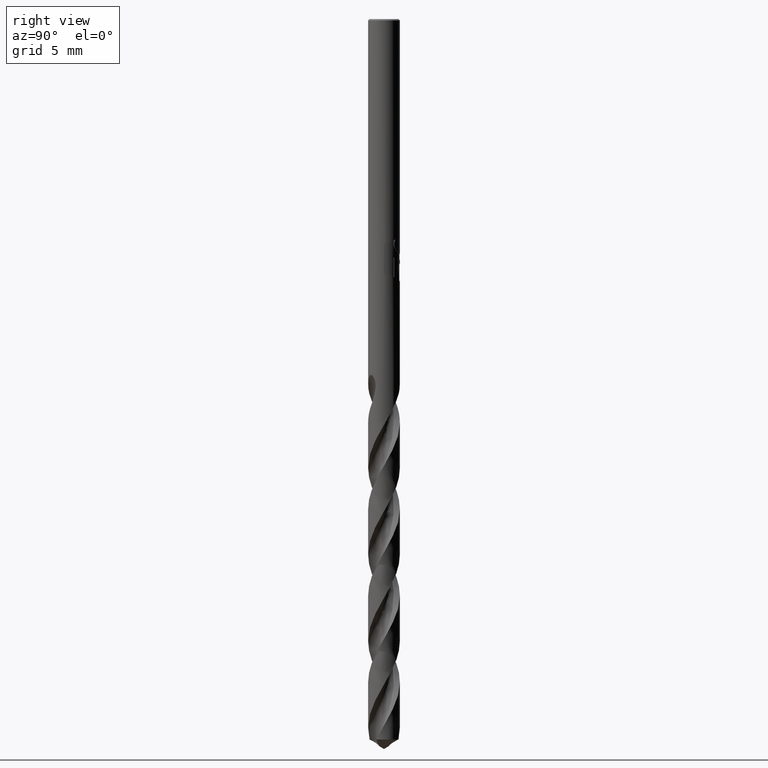
[diagram: clean part render]
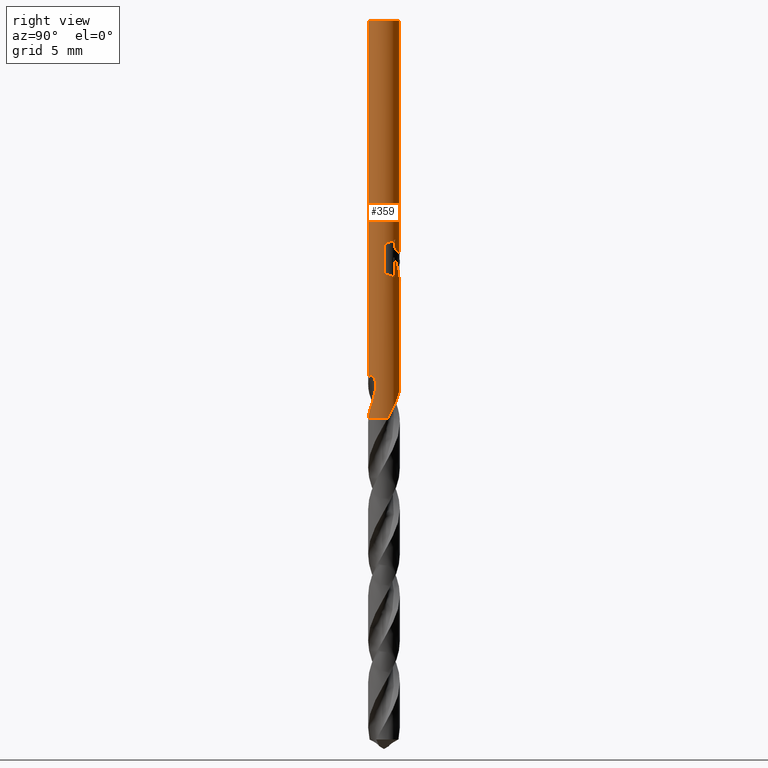
[diagram: same view with one face highlighted and labeled with its STEP entity id]
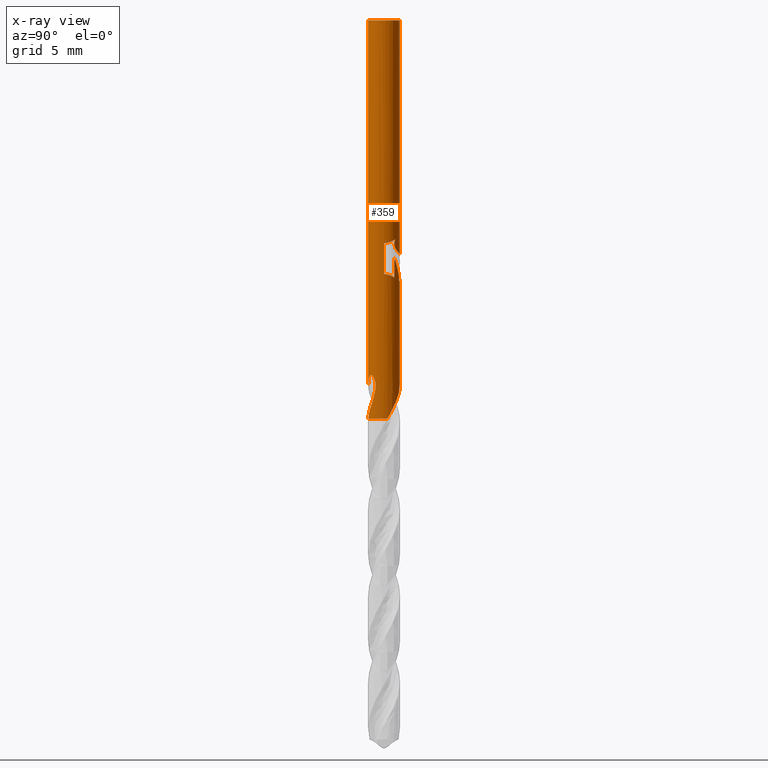
[diagram: x-ray of the same camera — body ghosted, the highlighted face saturated]
A machine part, right view. The second image highlights one B-rep face of the part: STEP entity #359.
The next image is the same camera in x-ray: the body ghosted, the highlighted face saturated — about 0% of this face is hidden behind the body in this view.
In plain terms, the highlighted cylindrical surface (edge-blend (fillet) strip) has radius 1.15 mm, axis along (-0, -0, 1).
Its self-contained STEP definition (entity closure, byte-faithful):
#315=EDGE_CURVE('',#685,#635,#874,.T.);
#321=EDGE_CURVE('',#489,#705,#880,.T.);
#325=EDGE_CURVE('',#589,#673,#884,.T.);
#359=ADVANCED_FACE('',(#919),#920,.T.);
#371=EDGE_CURVE('',#635,#581,#932,.T.);
#379=VERTEX_POINT('',#942);
#385=EDGE_CURVE('',#485,#569,#948,.T.);
#397=EDGE_CURVE('',#631,#723,#961,.T.);
#405=VERTEX_POINT('',#969);
#409=EDGE_CURVE('',#589,#685,#974,.T.);
#431=EDGE_CURVE('',#571,#705,#1000,.T.);
#443=VERTEX_POINT('',#1014);
#469=EDGE_CURVE('',#671,#443,#1043,.T.);
#485=VERTEX_POINT('',#1061);
#489=VERTEX_POINT('',#1065);
#527=EDGE_CURVE('',#405,#571,#1105,.T.);
#529=EDGE_CURVE('',#489,#631,#1107,.T.);
#533=EDGE_CURVE('',#485,#673,#1112,.T.);
#557=EDGE_CURVE('',#379,#797,#1138,.T.);
#561=EDGE_CURVE('',#443,#379,#1142,.T.);
#569=VERTEX_POINT('',#1151);
#571=VERTEX_POINT('',#1153);
#581=VERTEX_POINT('',#1163);
#589=VERTEX_POINT('',#1172);
#601=EDGE_CURVE('',#723,#671,#1186,.T.);
#631=VERTEX_POINT('',#1219);
#635=VERTEX_POINT('',#1223);
#671=VERTEX_POINT('',#1264);
#673=VERTEX_POINT('',#1266);
#675=EDGE_CURVE('',#405,#581,#1268,.T.);
#685=VERTEX_POINT('',#1278);
#705=VERTEX_POINT('',#1301);
#723=VERTEX_POINT('',#1319);
#729=EDGE_CURVE('',#797,#569,#1326,.T.);
#797=VERTEX_POINT('',#1400);
#874=B_SPLINE_CURVE_WITH_KNOTS('',3,(#1615,#1616,#1617,#1618),.UNSPECIFIED.,.F.,.F.,(4,4),(0.0,0.660927881892647),.UNSPECIFIED.);
#880=LINE('',#1647,#1648);
#884=LINE('',#1653,#1654);
#919=FACE_OUTER_BOUND('',#2477,.T.);
#920=CYLINDRICAL_SURFACE('',#2478,1.15);
#932=B_SPLINE_CURVE_WITH_KNOTS('',3,(#2534,#2535,#2536,#2537,#2538,#2539,#2540,#2541,#2542,#2543,#2544,#2545,#2546,#2547),.UNSPECIFIED.,.F.,.F.,(4,2,2,2,2,2,4),(0.0,0.304066214919465,0.374758521119328,0.659020229814045,1.01260083624631,1.18930059134071,1.36652072767402),.UNSPECIFIED.);
#942=CARTESIAN_POINT('',(1.15,0.0,-16.2783247473322));
#948=LINE('',#2566,#2567);
#961=ELLIPSE('',#2585,3.50519375937524,1.15);
#969=CARTESIAN_POINT('',(1.12047566619127,0.25890979408516,-29.0));
#974=B_SPLINE_CURVE_WITH_KNOTS('',3,(#3357,#3358,#3359,#3360,#3361,#3362,#3363,#3364,#3365,#3366,#3367,#3368,#3369,#3370,#3371,#3372,#3373,#3374,#3375,#3376,#3377,#3378,#3379,#3380,#3381,#3382,#3383,#3384),.UNSPECIFIED.,.F.,.F.,(4,2,2,2,2,2,2,2,2,2,2,2,2,4),(0.0,0.563439165919846,0.871089012521684,1.14974253763771,1.47347122766483,1.86234301075488,2.19938498382715,2.35212041512831,2.46375142231367,2.56938701378273,2.70339206311513,2.89944689030851,3.17816187579203,3.49510523447244),.UNSPECIFIED.);
#1000=B_SPLINE_CURVE_WITH_KNOTS('',3,(#4342,#4343,#4344,#4345,#4346,#4347,#4348,#4349,#4350,#4351,#4352,#4353,#4354,#4355,#4356,#4357,#4358,#4359,#4360,#4361,#4362,#4363,#4364,#4365,#4366,#4367,#4368,#4369),.UNSPECIFIED.,.F.,.F.,(4,2,2,2,2,2,2,2,2,2,2,2,2,4),(0.0,0.563439165919861,0.871089012521675,1.14974253763764,1.47347122766479,1.86234301075486,2.19938498382719,2.35212041512838,2.46375142231377,2.56938701378282,2.70339206311518,2.8994468903087,3.17816187579231,3.49510523447301),.UNSPECIFIED.);
#1014=CARTESIAN_POINT('',(1.15,0.0,-18.5268893897227));
#1043=B_SPLINE_CURVE_WITH_KNOTS('',3,(#5191,#5192,#5193,#5194,#5195,#5196,#5197,#5198,#5199,#5200),.UNSPECIFIED.,.F.,.F.,(4,2,2,2,4),(2.71693338918036,3.17614573504108,3.40575190797143,3.63535808090179,3.86496425383215),.UNSPECIFIED.);
#1061=CARTESIAN_POINT('',(0.0,1.15,-0.100000000000001));
#1065=CARTESIAN_POINT('',(-1.44945831354929E-017,1.15,-19.0310253601033));
#1105=B_SPLINE_CURVE_WITH_KNOTS('',3,(#6128,#6129,#6130,#6131,#6132,#6133,#6134,#6135,#6136,#6137),.UNSPECIFIED.,.F.,.F.,(4,2,2,2,4),(0.0,0.169695676246157,0.881624101320219,1.32750803953646,1.82514833251125),.UNSPECIFIED.);
#1107=B_SPLINE_CURVE_WITH_KNOTS('',3,(#6140,#6141,#6142,#6143,#6144,#6145,#6146,#6147,#6148,#6149,#6150,#6151,#6152,#6153,#6154,#6155,#6156,#6157,#6158,#6159,#6160),.UNSPECIFIED.,.F.,.F.,(4,3,2,2,2,2,2,2,2,4),(-0.228217566424312,0.0,0.228217566424312,0.456435132848624,0.912870265697247,1.36126580841946,1.58546357978056,1.80966135114166,2.03647935720914,2.26329736327661),.UNSPECIFIED.);
#1112=CIRCLE('',#6457,1.15);
#1138=B_SPLINE_CURVE_WITH_KNOTS('',3,(#6629,#6630,#6631,#6632,#6633,#6634,#6635,#6636,#6637,#6638,#6639,#6640),.UNSPECIFIED.,.F.,.F.,(4,2,2,2,2,4),(3.40575189393288,3.63535806653351,3.86496423913413,4.09457041173476,4.55378275693602,5.00741879788349),.UNSPECIFIED.);
#1142=LINE('',#6716,#6717);
#1151=CARTESIAN_POINT('',(5.06214303679779E-017,1.15,-17.0232688117743));
#1153=CARTESIAN_POINT('',(0.732801415983015,0.886285554848598,-27.7438));
#1163=CARTESIAN_POINT('',(0.163234868163358,-1.13835599783885,-29.0));
#1172=CARTESIAN_POINT('',(3.41352972635118E-013,-1.15,-26.5213685877671));
#1186=LINE('',#7889,#7890);
#1219=CARTESIAN_POINT('',(0.29010312703583,1.11280733987696,-18.9998328990228));
#1223=CARTESIAN_POINT('',(0.799338944710084,-0.826775212176665,-27.7438));
#1264=CARTESIAN_POINT('',(0.873560781758956,0.74792483617853,-18.7587351791531));
#1266=CARTESIAN_POINT('',(1.40829730689573E-016,-1.15,-0.100000000000001));
#1268=CIRCLE('',#8569,1.15);
#1278=CARTESIAN_POINT('',(0.935688487809581,-0.668570904078707,-27.1140827414183));
#1301=CARTESIAN_POINT('',(-3.39909682703105E-013,1.15,-26.5213685877671));
#1319=CARTESIAN_POINT('',(0.873560781758957,0.747924836178529,-17.3198931596091));
#1326=B_SPLINE_CURVE_WITH_KNOTS('',3,(#9420,#9421,#9422,#9423,#9424,#9425,#9426,#9427,#9428,#9429,#9430,#9431,#9432,#9433,#9434,#9435,#9436,#9437,#9438,#9439,#9440,#9441,#9442,#9443,#9444,#9445,#9446,#9447,#9448,#9449,#9450),.UNSPECIFIED.,.F.,.F.,(4,2,2,3,2,2,2,2,2,2,2,2,2,2,4),(-0.575221667439481,-0.28761083371974,-0.143805416859871,0.0,0.14380541685987,0.287610833719741,0.575221667439481,0.86960417947403,1.16398669150858,1.43600611227259,1.7080255330366,1.98638509704227,2.26474466104794,2.54310422505361,2.82146378905927),.UNSPECIFIED.);
#1400=CARTESIAN_POINT('',(0.799431726384364,0.826685499358804,-16.000000276873));
#1615=CARTESIAN_POINT('',(0.935688487862202,-0.668570904005065,-27.1140827414472));
#1616=CARTESIAN_POINT('',(0.898613435857902,-0.720458742885731,-27.3249601411424));
#1617=CARTESIAN_POINT('',(0.853928088554955,-0.773997591378495,-27.5370924635053));
#1618=CARTESIAN_POINT('',(0.799338944710083,-0.826775212176665,-27.7438));
#1647=CARTESIAN_POINT('',(-1.40829730689574E-016,1.15,-27.5));
#1648=VECTOR('',#11302,1.0);
#1653=CARTESIAN_POINT('',(1.40829730689573E-016,-1.15,-27.5));
#1654=VECTOR('',#11303,1.0);
#2477=EDGE_LOOP('',(#11320,#11321,#11322,#11323,#11324,#11325,#11326,#11327,#11328,#11329,#11330,#11331,#11332,#11333,#11334,#11335,#11336));
#2478=AXIS2_PLACEMENT_3D('',#11337,#11338,#11339);
#2534=CARTESIAN_POINT('',(0.799338944710083,-0.826775212176665,-27.7438));
#2535=CARTESIAN_POINT('',(0.764877385697705,-0.860093175521861,-27.8331041566011));
#2536=CARTESIAN_POINT('',(0.727921593301911,-0.891846284948815,-27.9209832156407));
#2537=CARTESIAN_POINT('',(0.675946617463489,-0.930454369220194,-28.0319377950721));
#2538=CARTESIAN_POINT('',(0.66599772435903,-0.937602530415087,-28.0527522063593));
#2539=CARTESIAN_POINT('',(0.61523685800474,-0.972847800099069,-28.1574007446938));
#2540=CARTESIAN_POINT('',(0.572684706902771,-0.998568259161847,-28.2422012555298));
#2541=CARTESIAN_POINT('',(0.470883209637179,-1.05109536970915,-28.4420714101034));
#2542=CARTESIAN_POINT('',(0.411541943096848,-1.07575132750092,-28.5541591140832));
#2543=CARTESIAN_POINT('',(0.319994692745541,-1.10504717878322,-28.721221563115));
#2544=CARTESIAN_POINT('',(0.289092535083424,-1.11353117606254,-28.776814569633));
#2545=CARTESIAN_POINT('',(0.226564234078025,-1.12791882456607,-28.8883105159832));
#2546=CARTESIAN_POINT('',(0.194989964640788,-1.13380246713594,-28.9441533676324));
#2547=CARTESIAN_POINT('',(0.163234868163362,-1.13835599783886,-29.0));
#2566=CARTESIAN_POINT('',(-1.40829730689574E-016,1.15,-27.5));
#2567=VECTOR('',#11376,1.0);
#2585=AXIS2_PLACEMENT_3D('',#11392,#11393,#11394);
#3357=CARTESIAN_POINT('',(-0.732801415983016,-0.886285554848597,-27.7438));
#3358=CARTESIAN_POINT('',(-0.656942936783975,-0.949007101721683,-27.5838461240386));
#3359=CARTESIAN_POINT('',(-0.569722726137768,-1.00476222410261,-27.4347177335096));
#3360=CARTESIAN_POINT('',(-0.417636612275422,-1.0731017437702,-27.1855883632487));
#3361=CARTESIAN_POINT('',(-0.362909028770127,-1.09276038604792,-27.0979364810499));
#3362=CARTESIAN_POINT('',(-0.256963323300359,-1.12214092837316,-26.9282650177729));
#3363=CARTESIAN_POINT('',(-0.206218264168661,-1.1325210078618,-26.8470363396697));
#3364=CARTESIAN_POINT('',(-0.0963765610101797,-1.14750205881436,-26.671966831078));
#3365=CARTESIAN_POINT('',(-0.0363624247649631,-1.15101921641794,-26.5767556522682));
#3366=CARTESIAN_POINT('',(0.0969135000233252,-1.14821588944496,-26.3730676135129));
#3367=CARTESIAN_POINT('',(0.175932608102415,-1.13954503588752,-26.2571669138973));
#3368=CARTESIAN_POINT('',(0.328310770770767,-1.10452787602426,-26.0660546034527));
#3369=CARTESIAN_POINT('',(0.412615579747785,-1.07784918322546,-25.9727991903961));
#3370=CARTESIAN_POINT('',(0.540209987272343,-1.01618217974311,-25.8854750233789));
#3371=CARTESIAN_POINT('',(0.58244450076404,-0.992901511919924,-25.8638937624332));
#3372=CARTESIAN_POINT('',(0.656449091094911,-0.944966031406713,-25.8473154553765));
#3373=CARTESIAN_POINT('',(0.686802534663058,-0.923135848315933,-25.8470058808927));
#3374=CARTESIAN_POINT('',(0.743337466652864,-0.878170219512602,-25.8615152805996));
#3375=CARTESIAN_POINT('',(0.768063026855961,-0.856452714185138,-25.8751191499751));
#3376=CARTESIAN_POINT('',(0.818379268670271,-0.808860489833656,-25.9176841093519));
#3377=CARTESIAN_POINT('',(0.841657840373477,-0.784196998507467,-25.9491106842274));
#3378=CARTESIAN_POINT('',(0.88933988416031,-0.73034244796042,-26.0351664182505));
#3379=CARTESIAN_POINT('',(0.91213094992704,-0.701014784640784,-26.0989943483622));
#3380=CARTESIAN_POINT('',(0.954988710946624,-0.642125183707774,-26.2775777843477));
#3381=CARTESIAN_POINT('',(0.970482787846634,-0.617041023352546,-26.4047625005414));
#3382=CARTESIAN_POINT('',(0.980389669721945,-0.601194624144245,-26.7088383268387));
#3383=CARTESIAN_POINT('',(0.9733699962284,-0.615834308131,-26.8997631252645));
#3384=CARTESIAN_POINT('',(0.93568848780958,-0.668570904078704,-27.1140827414183));
#4342=CARTESIAN_POINT('',(0.732801415983015,0.886285554848598,-27.7438));
#4343=CARTESIAN_POINT('',(0.656942936783973,0.949007101721685,-27.5838461240386));
#4344=CARTESIAN_POINT('',(0.569722726137763,1.00476222410261,-27.4347177335096));
#4345=CARTESIAN_POINT('',(0.417636612275431,1.07310174377019,-27.1855883632487));
#4346=CARTESIAN_POINT('',(0.362909028770144,1.09276038604791,-27.0979364810499));
#4347=CARTESIAN_POINT('',(0.256963323300352,1.12214092837316,-26.9282650177729));
#4348=CARTESIAN_POINT('',(0.206218264168644,1.1325210078618,-26.8470363396697));
#4349=CARTESIAN_POINT('',(0.0963765610101799,1.14750205881436,-26.671966831078));
#4350=CARTESIAN_POINT('',(0.0363624247649638,1.15101921641794,-26.5767556522682));
#4351=CARTESIAN_POINT('',(-0.0969135000233221,1.14821588944496,-26.3730676135129));
#4352=CARTESIAN_POINT('',(-0.175932608102413,1.13954503588752,-26.2571669138974));
#4353=CARTESIAN_POINT('',(-0.328310770770776,1.10452787602426,-26.0660546034527));
#4354=CARTESIAN_POINT('',(-0.412615579747787,1.07784918322546,-25.9727991903961));
#4355=CARTESIAN_POINT('',(-0.540209987272341,1.01618217974311,-25.8854750233789));
#4356=CARTESIAN_POINT('',(-0.582444500764039,0.992901511919926,-25.8638937624332));
#4357=CARTESIAN_POINT('',(-0.656449091094912,0.944966031406713,-25.8473154553765));
#4358=CARTESIAN_POINT('',(-0.686802534663058,0.923135848315932,-25.8470058808927));
#4359=CARTESIAN_POINT('',(-0.743337466652858,0.878170219512606,-25.8615152805996));
#4360=CARTESIAN_POINT('',(-0.768063026855951,0.856452714185148,-25.8751191499751));
#4361=CARTESIAN_POINT('',(-0.818379268670275,0.808860489833653,-25.9176841093519));
#4362=CARTESIAN_POINT('',(-0.841657840373484,0.784196998507459,-25.9491106842274));
#4363=CARTESIAN_POINT('',(-0.889339884160327,0.730342447960399,-26.0351664182506));
#4364=CARTESIAN_POINT('',(-0.912130949927052,0.701014784640768,-26.0989943483623));
#4365=CARTESIAN_POINT('',(-0.954988710946596,0.642125183707812,-26.2775777843476));
#4366=CARTESIAN_POINT('',(-0.970482787846629,0.617041023352553,-26.4047625005413));
#4367=CARTESIAN_POINT('',(-0.980389669721952,0.601194624144233,-26.7088383268389));
#4368=CARTESIAN_POINT('',(-0.973369996228356,0.615834308131062,-26.8997631252647));
#4369=CARTESIAN_POINT('',(-0.935688487809578,0.668570904078707,-27.1140827414183));
#5191=CARTESIAN_POINT('',(0.814312128358884,0.812031869822622,-18.7963245968368));
#5192=CARTESIAN_POINT('',(0.913717249147837,0.71234761051257,-18.7362218956111));
#5193=CARTESIAN_POINT('',(1.00024111472118,0.587360508241971,-18.6678379591556));
#5194=CARTESIAN_POINT('',(1.08876233861921,0.377941769688251,-18.588420146175));
#5195=CARTESIAN_POINT('',(1.11164269277709,0.304404090056062,-18.5659682205573));
#5196=CARTESIAN_POINT('',(1.14227099201795,0.15371500089479,-18.5351432588283));
#5197=CARTESIAN_POINT('',(1.15,0.076535390976786,-18.5268893897227));
#5198=CARTESIAN_POINT('',(1.15,-0.076535390976786,-18.5268893897227));
#5199=CARTESIAN_POINT('',(1.14227099201795,-0.15371500089479,-18.5351432588283));
#5200=CARTESIAN_POINT('',(1.12695684239752,-0.229059545475426,-18.5505557396928));
#6128=CARTESIAN_POINT('',(1.12047566619128,0.258909794085154,-29.0));
#6129=CARTESIAN_POINT('',(1.11415213658631,0.286275931669257,-28.9509007921311));
#6130=CARTESIAN_POINT('',(1.10683796637921,0.313374618521071,-28.9016230558629));
#6131=CARTESIAN_POINT('',(1.06352118799459,0.45320694870198,-28.6463318314358));
#6132=CARTESIAN_POINT('',(1.01548050188636,0.548249190556415,-28.4744437366349));
#6133=CARTESIAN_POINT('',(0.929815595043507,0.679398449578717,-28.1881839535861));
#6134=CARTESIAN_POINT('',(0.908831383932411,0.706616495853611,-28.1121970709788));
#6135=CARTESIAN_POINT('',(0.836367391430013,0.791488543642964,-27.9231895665241));
#6136=CARTESIAN_POINT('',(0.790195010539345,0.838831202096095,-27.8317853787606));
#6137=CARTESIAN_POINT('',(0.732801415983016,0.886285554848598,-27.7438));
#6140=CARTESIAN_POINT('',(-1.12705664151268,-0.228567991683332,-18.6048634338891));
#6141=CARTESIAN_POINT('',(-1.14235495790285,-0.153132799507581,-18.5908829008319));
#6142=CARTESIAN_POINT('',(-1.15,-0.0760725221414372,-18.5834874419264));
#6143=CARTESIAN_POINT('',(-1.15,0.0,-18.5834874419264));
#6144=CARTESIAN_POINT('',(-1.15,0.0760725221414373,-18.5834874419264));
#6145=CARTESIAN_POINT('',(-1.14235495790285,0.153132799507581,-18.5908829008319));
#6146=CARTESIAN_POINT('',(-1.11175832512252,0.304003183859083,-18.6188439669463));
#6147=CARTESIAN_POINT('',(-1.08882572246063,0.377835453188677,-18.6393106748477));
#6148=CARTESIAN_POINT('',(-0.999813923264829,0.588283644190979,-18.712074817082));
#6149=CARTESIAN_POINT('',(-0.912512328184552,0.714094720771525,-18.7751769658557));
#6150=CARTESIAN_POINT('',(-0.713468847801753,0.9126171327666,-18.8844439452781));
#6151=CARTESIAN_POINT('',(-0.587602816682703,1.00030784078029,-18.9391834795055));
#6152=CARTESIAN_POINT('',(-0.376193705996263,1.08941569015347,-18.9953658145462));
#6153=CARTESIAN_POINT('',(-0.301988635540002,1.1123005726337,-19.0099168439879));
#6154=CARTESIAN_POINT('',(-0.151254358466641,1.14259871300721,-19.0284033948462));
#6155=CARTESIAN_POINT('',(-0.074721257879001,1.15,-19.0323267812114));
#6156=CARTESIAN_POINT('',(0.0755945370022024,1.15,-19.0297087290816));
#6157=CARTESIAN_POINT('',(0.152786320077232,1.1424282315386,-19.0229872439299));
#6158=CARTESIAN_POINT('',(0.304435523841718,1.11166763719533,-18.998756293185));
#6159=CARTESIAN_POINT('',(0.37889762135076,1.08849262831913,-18.9812585606961));
#6160=CARTESIAN_POINT('',(0.449476646832189,1.05852290667349,-18.959597917736));
#6457=AXIS2_PLACEMENT_3D('',#11546,#11547,#11548);
#6629=CARTESIAN_POINT('',(1.12695684246993,-0.229059545119194,-16.2546583972899));
#6630=CARTESIAN_POINT('',(1.1422709920396,-0.153715000666302,-16.2700708782094));
#6631=CARTESIAN_POINT('',(1.15,-0.0765353908668763,-16.2783247473322));
#6632=CARTESIAN_POINT('',(1.15,0.0765353908668763,-16.2783247473322));
#6633=CARTESIAN_POINT('',(1.1422709920396,0.153715000666302,-16.2700708782094));
#6634=CARTESIAN_POINT('',(1.11164269290026,0.304404089572085,-16.2392459163704));
#6635=CARTESIAN_POINT('',(1.08876233882211,0.377941769066753,-16.2167939906565));
#6636=CARTESIAN_POINT('',(1.00024111529175,0.58736050717511,-16.1373761771454));
#6637=CARTESIAN_POINT('',(0.913717250137167,0.712347609099234,-16.0689922399813));
#6638=CARTESIAN_POINT('',(0.716114105595584,0.910505641883294,-15.9495166739585));
#6639=CARTESIAN_POINT('',(0.590634713658626,0.998583454320591,-15.8889380493124));
#6640=CARTESIAN_POINT('',(0.449476661607162,1.05852290039965,-15.8456167332162));
#6716=CARTESIAN_POINT('',(1.15,0.0,-17.4026070684352));
#6717=VECTOR('',#11575,1.0);
#7889=CARTESIAN_POINT('',(0.873560781758957,0.747924836178529,-18.0393141693811));
#7890=VECTOR('',#11612,1.0);
#8569=AXIS2_PLACEMENT_3D('',#11693,#11694,#11695);
#9420=CARTESIAN_POINT('',(0.670878545186431,0.934035319251118,-15.8194243925232));
#9421=CARTESIAN_POINT('',(0.730741344863012,0.891038371351962,-15.8807335914425));
#9422=CARTESIAN_POINT('',(0.783362766728711,0.843500111511961,-15.9575280504497));
#9423=CARTESIAN_POINT('',(0.837534354122617,0.788478712170001,-16.0867179962754));
#9424=CARTESIAN_POINT('',(0.851618925815651,0.772948447072476,-16.1321650019841));
#9425=CARTESIAN_POINT('',(0.870557586031585,0.751554115090569,-16.2256492005173));
#9426=CARTESIAN_POINT('',(0.875400981188567,0.745770153689523,-16.2737068736335));
#9427=CARTESIAN_POINT('',(0.875400981188567,0.745770153689523,-16.3216420125868));
#9428=CARTESIAN_POINT('',(0.875400981188567,0.745770153689523,-16.3695771515401));
#9429=CARTESIAN_POINT('',(0.870557586031585,0.751554115090569,-16.4176348246563));
#9430=CARTESIAN_POINT('',(0.851618925815651,0.772948447072477,-16.5111190231894));
#9431=CARTESIAN_POINT('',(0.837534354122617,0.788478712170001,-16.5565660288981));
#9432=CARTESIAN_POINT('',(0.78336276672871,0.843500111511962,-16.6857559747239));
#9433=CARTESIAN_POINT('',(0.730741344863013,0.891038371351962,-16.7625504337311));
#9434=CARTESIAN_POINT('',(0.609606300611021,0.978044612533535,-16.8866123313413));
#9435=CARTESIAN_POINT('',(0.53122723063669,1.02448822349018,-16.9427457702338));
#9436=CARTESIAN_POINT('',(0.353396691829169,1.09858514212891,-17.0197915047214));
#9437=CARTESIAN_POINT('',(0.253740695304578,1.12594167992391,-17.0405166027747));
#9438=CARTESIAN_POINT('',(0.0666970782335198,1.15163931772007,-17.0405166027747));
#9439=CARTESIAN_POINT('',(-0.0293911437348981,1.15302235328924,-17.0225508986627));
#9440=CARTESIAN_POINT('',(-0.205378230070101,1.13496439079894,-16.9500237611274));
#9441=CARTESIAN_POINT('',(-0.285352029498634,1.11599220926285,-16.8955282226055));
#9442=CARTESIAN_POINT('',(-0.412740381954892,1.07550713046307,-16.7698675148097));
#9443=CARTESIAN_POINT('',(-0.468548760238635,1.05104595572453,-16.6895391146912));
#9444=CARTESIAN_POINT('',(-0.543373290109843,1.01438711364003,-16.5119244508748));
#9445=CARTESIAN_POINT('',(-0.562348199187247,1.00312736124126,-16.414428533922));
#9446=CARTESIAN_POINT('',(-0.562348199187247,1.00312736124126,-16.2288554912516));
#9447=CARTESIAN_POINT('',(-0.543373290109843,1.01438711364003,-16.1313595742988));
#9448=CARTESIAN_POINT('',(-0.468548760238635,1.05104595572453,-15.9537449104824));
#9449=CARTESIAN_POINT('',(-0.412740381954892,1.07550713046307,-15.8734165103639));
#9450=CARTESIAN_POINT('',(-0.348312474584913,1.09598285572747,-15.8098623762079));
#11302=DIRECTION('',(0.0,0.0,-1.0));
#11303=DIRECTION('',(-0.0,-0.0,1.0));
#11320=ORIENTED_EDGE('',*,*,#385,.F.);
#11321=ORIENTED_EDGE('',*,*,#533,.T.);
#11322=ORIENTED_EDGE('',*,*,#325,.F.);
#11323=ORIENTED_EDGE('',*,*,#409,.T.);
#11324=ORIENTED_EDGE('',*,*,#315,.T.);
#11325=ORIENTED_EDGE('',*,*,#371,.T.);
#11326=ORIENTED_EDGE('',*,*,#675,.F.);
#11327=ORIENTED_EDGE('',*,*,#527,.T.);
#11328=ORIENTED_EDGE('',*,*,#431,.T.);
#11329=ORIENTED_EDGE('',*,*,#321,.F.);
#11330=ORIENTED_EDGE('',*,*,#529,.T.);
#11331=ORIENTED_EDGE('',*,*,#397,.T.);
#11332=ORIENTED_EDGE('',*,*,#601,.T.);
#11333=ORIENTED_EDGE('',*,*,#469,.T.);
#11334=ORIENTED_EDGE('',*,*,#561,.T.);
#11335=ORIENTED_EDGE('',*,*,#557,.T.);
#11336=ORIENTED_EDGE('',*,*,#729,.T.);
#11337=CARTESIAN_POINT('',(0.0,0.0,-27.5));
#11338=DIRECTION('',(-0.0,-0.0,1.0));
#11339=DIRECTION('',(0.0,1.0,0.0));
#11376=DIRECTION('',(0.0,0.0,-1.0));
#11392=CARTESIAN_POINT('',(0.0,0.0,-19.8351219173269));
#11393=DIRECTION('',(0.944648353914092,0.0,-0.328084573619969));
#11394=DIRECTION('',(0.328084573619969,-0.0,0.944648353914092));
#11546=CARTESIAN_POINT('',(0.0,0.0,-0.100000000000001));
#11547=DIRECTION('',(0.0,0.0,-1.0));
#11548=DIRECTION('',(0.0,1.0,0.0));
#11575=DIRECTION('',(-0.0,-0.0,1.0));
#11612=DIRECTION('',(0.0,0.0,-1.0));
#11693=CARTESIAN_POINT('',(0.0,0.0,-29.0));
#11694=DIRECTION('',(0.0,0.0,-1.0));
#11695=DIRECTION('',(0.0,1.0,0.0));